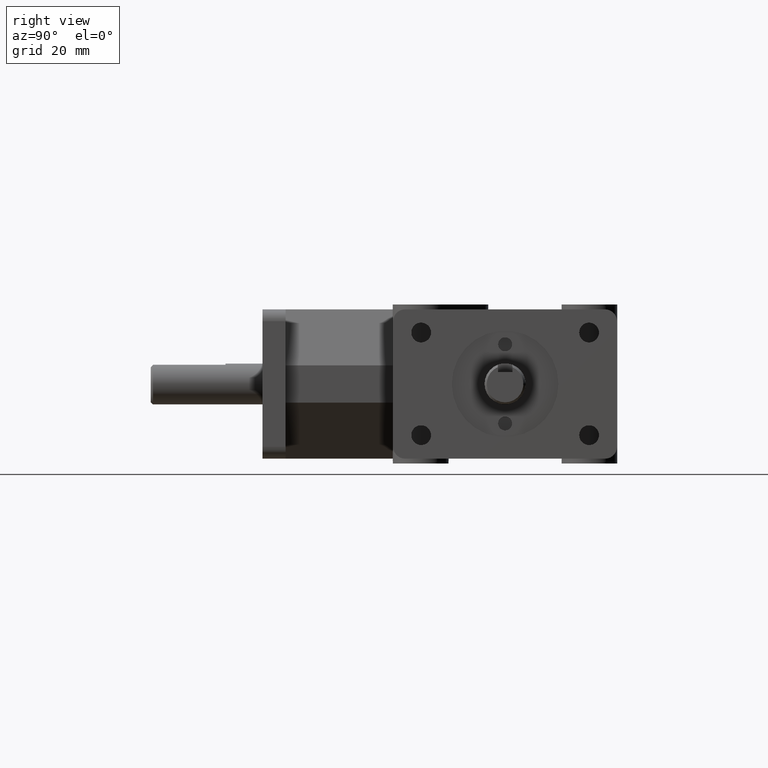
[diagram: clean part render]
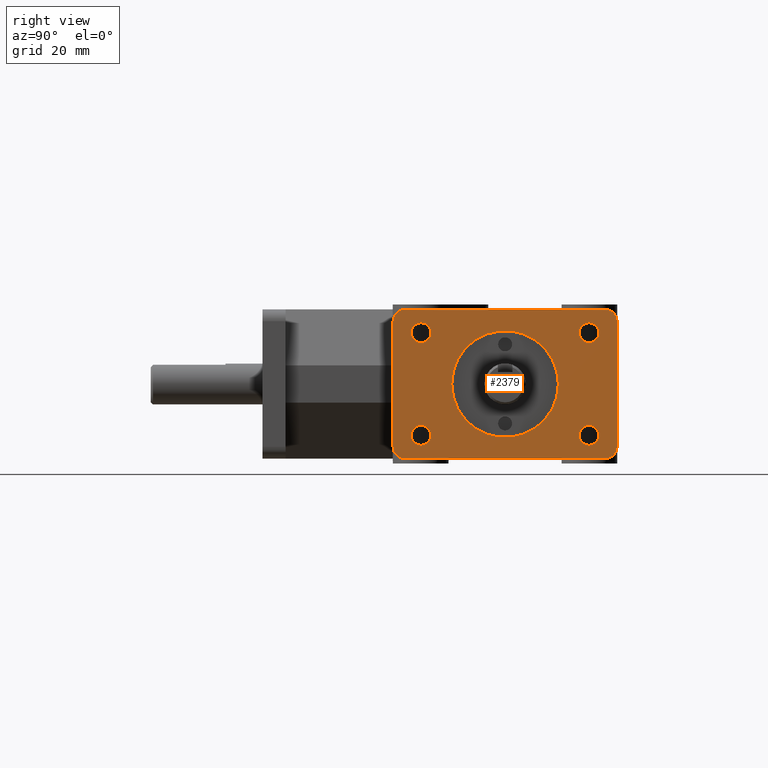
[diagram: same view with one face highlighted and labeled with its STEP entity id]
A machine part, right view. The second image highlights one B-rep face of the part: STEP entity #2379.
In plain terms, the highlighted planar face has unit normal (1, 0, 0).
Its self-contained STEP definition (entity closure, byte-faithful):
#45=FACE_BOUND('',#420,.T.);
#46=FACE_BOUND('',#421,.T.);
#47=FACE_BOUND('',#422,.T.);
#48=FACE_BOUND('',#423,.T.);
#49=FACE_BOUND('',#424,.T.);
#133=PLANE('',#2628);
#260=FACE_OUTER_BOUND('',#419,.T.);
#419=EDGE_LOOP('',(#2099,#2100,#2101,#2102,#2103,#2104,#2105,#2106));
#420=EDGE_LOOP('',(#2107));
#421=EDGE_LOOP('',(#2108));
#422=EDGE_LOOP('',(#2109));
#423=EDGE_LOOP('',(#2110));
#424=EDGE_LOOP('',(#2111));
#549=LINE('',#3715,#771);
#574=LINE('',#3774,#796);
#654=LINE('',#3999,#876);
#655=LINE('',#4001,#877);
#771=VECTOR('',#2994,1.);
#796=VECTOR('',#3039,1.);
#876=VECTOR('',#3283,1.);
#877=VECTOR('',#3286,1.);
#910=CIRCLE('',#2440,18.1356);
#937=CIRCLE('',#2497,4.064);
#939=CIRCLE('',#2500,4.064);
#941=CIRCLE('',#2503,4.064);
#943=CIRCLE('',#2506,4.064);
#977=CIRCLE('',#2562,3.3655);
#978=CIRCLE('',#2564,3.3655);
#979=CIRCLE('',#2566,3.3655);
#980=CIRCLE('',#2568,3.3655);
#1016=VERTEX_POINT('',#3391);
#1072=VERTEX_POINT('',#3565);
#1073=VERTEX_POINT('',#3566);
#1076=VERTEX_POINT('',#3574);
#1077=VERTEX_POINT('',#3575);
#1080=VERTEX_POINT('',#3583);
#1081=VERTEX_POINT('',#3584);
#1084=VERTEX_POINT('',#3592);
#1085=VERTEX_POINT('',#3593);
#1180=VERTEX_POINT('',#3836);
#1181=VERTEX_POINT('',#3840);
#1182=VERTEX_POINT('',#3844);
#1183=VERTEX_POINT('',#3848);
#1244=EDGE_CURVE('',#1016,#1016,#910,.T.);
#1320=EDGE_CURVE('',#1072,#1073,#937,.T.);
#1324=EDGE_CURVE('',#1076,#1077,#939,.T.);
#1328=EDGE_CURVE('',#1080,#1081,#941,.T.);
#1332=EDGE_CURVE('',#1084,#1085,#943,.T.);
#1394=EDGE_CURVE('',#1084,#1073,#549,.T.);
#1427=EDGE_CURVE('',#1076,#1081,#574,.T.);
#1458=EDGE_CURVE('',#1180,#1180,#977,.T.);
#1460=EDGE_CURVE('',#1181,#1181,#978,.T.);
#1462=EDGE_CURVE('',#1182,#1182,#979,.T.);
#1464=EDGE_CURVE('',#1183,#1183,#980,.T.);
#1537=EDGE_CURVE('',#1072,#1077,#654,.T.);
#1538=EDGE_CURVE('',#1085,#1080,#655,.T.);
#2099=ORIENTED_EDGE('',*,*,#1320,.F.);
#2100=ORIENTED_EDGE('',*,*,#1537,.T.);
#2101=ORIENTED_EDGE('',*,*,#1324,.F.);
#2102=ORIENTED_EDGE('',*,*,#1427,.T.);
#2103=ORIENTED_EDGE('',*,*,#1328,.F.);
#2104=ORIENTED_EDGE('',*,*,#1538,.F.);
#2105=ORIENTED_EDGE('',*,*,#1332,.F.);
#2106=ORIENTED_EDGE('',*,*,#1394,.T.);
#2107=ORIENTED_EDGE('',*,*,#1458,.T.);
#2108=ORIENTED_EDGE('',*,*,#1460,.T.);
#2109=ORIENTED_EDGE('',*,*,#1462,.T.);
#2110=ORIENTED_EDGE('',*,*,#1464,.T.);
#2111=ORIENTED_EDGE('',*,*,#1244,.T.);
#2379=ADVANCED_FACE('',(#260,#45,#46,#47,#48,#49),#133,.T.);
#2440=AXIS2_PLACEMENT_3D('',#3392,#2712,#2713);
#2497=AXIS2_PLACEMENT_3D('',#3567,#2869,#2870);
#2500=AXIS2_PLACEMENT_3D('',#3576,#2877,#2878);
#2503=AXIS2_PLACEMENT_3D('',#3585,#2885,#2886);
#2506=AXIS2_PLACEMENT_3D('',#3594,#2893,#2894);
#2562=AXIS2_PLACEMENT_3D('',#3837,#3097,#3098);
#2564=AXIS2_PLACEMENT_3D('',#3841,#3102,#3103);
#2566=AXIS2_PLACEMENT_3D('',#3845,#3107,#3108);
#2568=AXIS2_PLACEMENT_3D('',#3849,#3112,#3113);
#2628=AXIS2_PLACEMENT_3D('',#4000,#3284,#3285);
#2712=DIRECTION('center_axis',(-1.,0.,0.));
#2713=DIRECTION('ref_axis',(0.,-1.,0.));
#2869=DIRECTION('center_axis',(-1.,0.,0.));
#2870=DIRECTION('ref_axis',(0.,-0.707106781186548,0.707106781186548));
#2877=DIRECTION('center_axis',(-1.,0.,0.));
#2878=DIRECTION('ref_axis',(0.,-0.707106781186548,-0.707106781186548));
#2885=DIRECTION('center_axis',(-1.,0.,0.));
#2886=DIRECTION('ref_axis',(0.,0.707106781186548,-0.707106781186548));
#2893=DIRECTION('center_axis',(-1.,0.,0.));
#2894=DIRECTION('ref_axis',(0.,0.707106781186548,0.707106781186548));
#2994=DIRECTION('',(0.,-1.,0.));
#3039=DIRECTION('',(0.,1.,0.));
#3097=DIRECTION('center_axis',(-1.,0.,0.));
#3098=DIRECTION('ref_axis',(0.,1.,0.));
#3102=DIRECTION('center_axis',(-1.,0.,0.));
#3103=DIRECTION('ref_axis',(0.,1.,0.));
#3107=DIRECTION('center_axis',(-1.,0.,0.));
#3108=DIRECTION('ref_axis',(0.,1.,0.));
#3112=DIRECTION('center_axis',(-1.,0.,0.));
#3113=DIRECTION('ref_axis',(0.,1.,0.));
#3283=DIRECTION('',(0.,0.,-1.));
#3284=DIRECTION('center_axis',(1.,0.,0.));
#3285=DIRECTION('ref_axis',(0.,-1.,0.));
#3286=DIRECTION('',(0.,0.,-1.));
#3391=CARTESIAN_POINT('',(53.975,100.6856,-2.22097044906167E-15));
#3392=CARTESIAN_POINT('Origin',(53.975,82.55,0.));
#3565=CARTESIAN_POINT('',(53.975,44.45,21.336));
#3566=CARTESIAN_POINT('',(53.975,48.514,25.4));
#3567=CARTESIAN_POINT('Origin',(53.975,48.514,21.336));
#3574=CARTESIAN_POINT('',(53.975,48.514,-25.4));
#3575=CARTESIAN_POINT('',(53.975,44.45,-21.336));
#3576=CARTESIAN_POINT('Origin',(53.975,48.514,-21.336));
#3583=CARTESIAN_POINT('',(53.975,120.65,-21.336));
#3584=CARTESIAN_POINT('',(53.975,116.586,-25.4));
#3585=CARTESIAN_POINT('Origin',(53.975,116.586,-21.336));
#3592=CARTESIAN_POINT('',(53.975,116.586,25.4));
#3593=CARTESIAN_POINT('',(53.975,120.65,21.336));
#3594=CARTESIAN_POINT('Origin',(53.975,116.586,21.336));
#3715=CARTESIAN_POINT('',(53.975,44.45,25.4));
#3774=CARTESIAN_POINT('',(53.975,44.45,-25.4));
#3836=CARTESIAN_POINT('',(53.975,107.7595,-17.4625));
#3837=CARTESIAN_POINT('Origin',(53.975,111.125,-17.4625));
#3840=CARTESIAN_POINT('',(53.975,107.7595,17.4625));
#3841=CARTESIAN_POINT('Origin',(53.975,111.125,17.4625));
#3844=CARTESIAN_POINT('',(53.975,50.6095,17.4625));
#3845=CARTESIAN_POINT('Origin',(53.975,53.975,17.4625));
#3848=CARTESIAN_POINT('',(53.975,50.6095,-17.4625));
#3849=CARTESIAN_POINT('Origin',(53.975,53.975,-17.4625));
#3999=CARTESIAN_POINT('',(53.975,44.45,0.));
#4000=CARTESIAN_POINT('Origin',(53.975,44.45,0.));
#4001=CARTESIAN_POINT('',(53.975,120.65,0.));